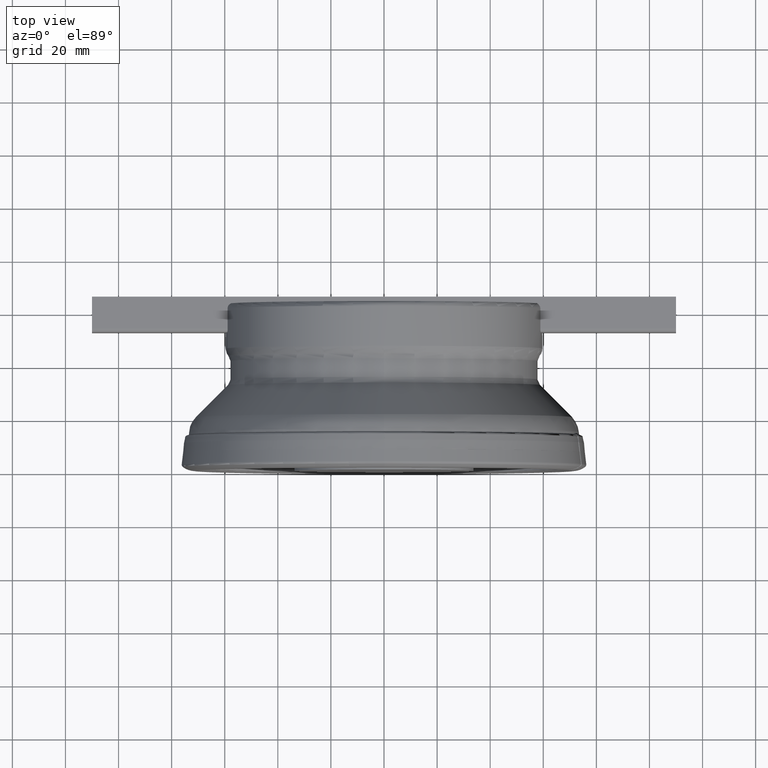
[diagram: clean part render]
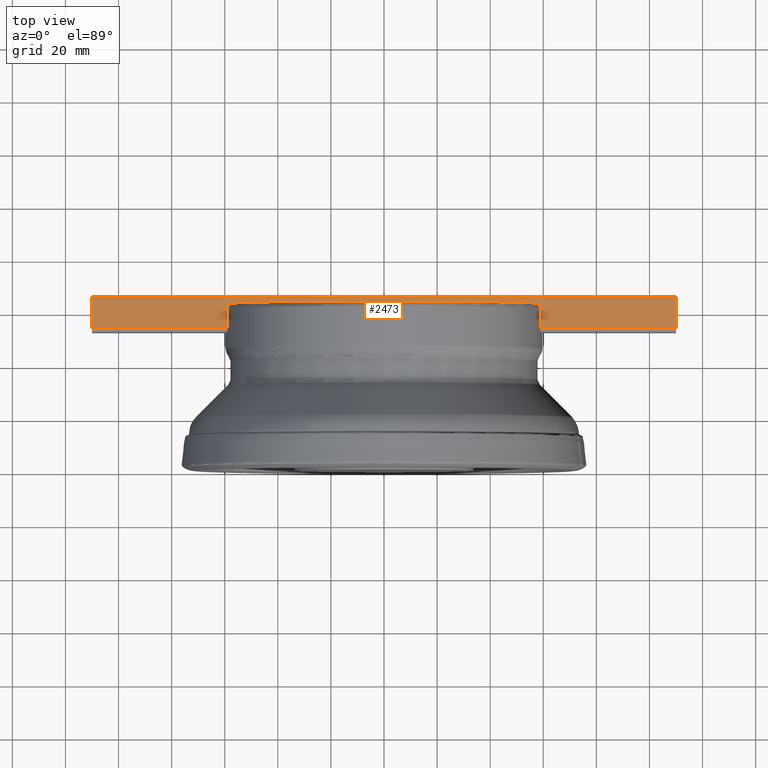
[diagram: same view with one face highlighted and labeled with its STEP entity id]
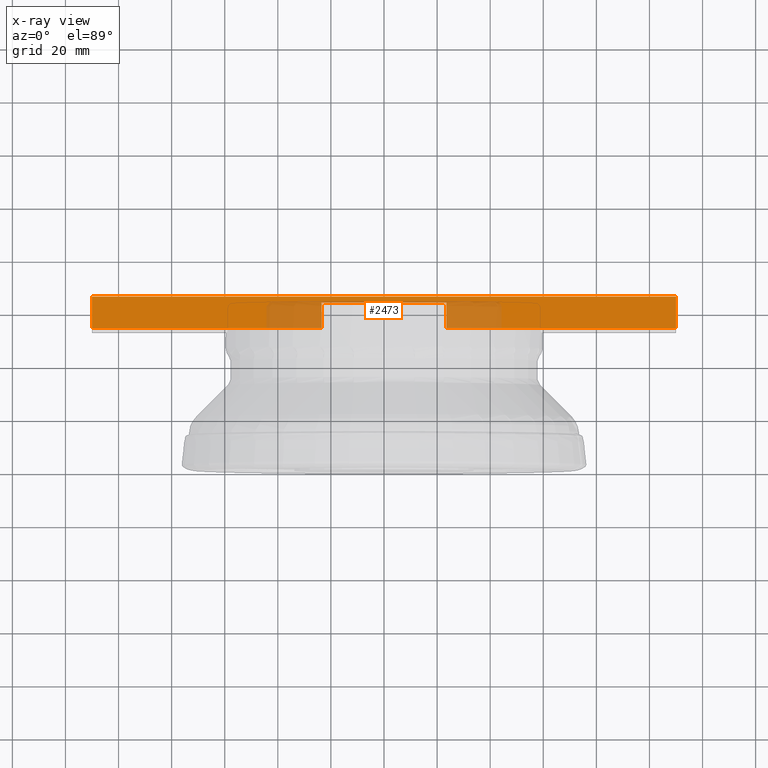
[diagram: x-ray of the same camera — body ghosted, the highlighted face saturated]
A machine part, top view. The second image highlights one B-rep face of the part: STEP entity #2473.
The next image is the same camera in x-ray: the body ghosted, the highlighted face saturated — about 20% of this face is hidden behind the body in this view.
In plain terms, the highlighted planar face has unit normal (-0, 0, -1).
Its self-contained STEP definition (entity closure, byte-faithful):
#601=PLANE('',#7863);
#1021=FACE_OUTER_BOUND('',#3255,.T.);
#1690=B_SPLINE_CURVE_WITH_KNOTS('',3,(#19332,#19333,#19334,#19335,#19336,
#19337,#19338),.UNSPECIFIED.,.F.,.F.,(4,3,4),(0.,0.532192285172933,1.),
 .UNSPECIFIED.);
#1691=B_SPLINE_CURVE_WITH_KNOTS('',3,(#19339,#19340,#19341,#19342,#19343,
#19344,#19345),.UNSPECIFIED.,.F.,.F.,(4,3,4),(0.,0.467807714827064,1.),
 .UNSPECIFIED.);
#1826=LINE('',#19222,#1983);
#1827=LINE('',#19229,#1984);
#1830=LINE('',#19315,#1987);
#1834=LINE('',#19383,#1991);
#1843=LINE('',#19405,#2000);
#1844=LINE('',#19407,#2001);
#1845=LINE('',#19409,#2002);
#1846=LINE('',#19411,#2003);
#1983=VECTOR('',#8972,1.);
#1984=VECTOR('',#8979,1.);
#1987=VECTOR('',#8988,1.);
#1991=VECTOR('',#9038,1.);
#2000=VECTOR('',#9059,1.);
#2001=VECTOR('',#9060,1.);
#2002=VECTOR('',#9061,1.);
#2003=VECTOR('',#9062,1.);
#2473=ADVANCED_FACE('',(#1021),#601,.F.);
#3255=EDGE_LOOP('',(#5323,#5324,#5325,#5326,#5327,#5328,#5329,#5330,#5331,
#5332));
#5323=ORIENTED_EDGE('',*,*,#7031,.F.);
#5324=ORIENTED_EDGE('',*,*,#7044,.F.);
#5325=ORIENTED_EDGE('',*,*,#7028,.F.);
#5326=ORIENTED_EDGE('',*,*,#7045,.F.);
#5327=ORIENTED_EDGE('',*,*,#7041,.F.);
#5328=ORIENTED_EDGE('',*,*,#7071,.T.);
#5329=ORIENTED_EDGE('',*,*,#7072,.T.);
#5330=ORIENTED_EDGE('',*,*,#7073,.F.);
#5331=ORIENTED_EDGE('',*,*,#7074,.F.);
#5332=ORIENTED_EDGE('',*,*,#7060,.T.);
#5993=VERTEX_POINT('',#19220);
#5994=VERTEX_POINT('',#19221);
#5996=VERTEX_POINT('',#19227);
#5997=VERTEX_POINT('',#19228);
#5998=VERTEX_POINT('',#19230);
#6007=VERTEX_POINT('',#19314);
#6021=VERTEX_POINT('',#19384);
#6028=VERTEX_POINT('',#19406);
#6029=VERTEX_POINT('',#19408);
#6030=VERTEX_POINT('',#19410);
#7028=EDGE_CURVE('',#5993,#5994,#1826,.T.);
#7031=EDGE_CURVE('',#5997,#5998,#1827,.T.);
#7041=EDGE_CURVE('',#6007,#5996,#1830,.T.);
#7044=EDGE_CURVE('',#5994,#5997,#1690,.T.);
#7045=EDGE_CURVE('',#5996,#5993,#1691,.T.);
#7060=EDGE_CURVE('',#6021,#5998,#1834,.T.);
#7071=EDGE_CURVE('',#6007,#6028,#1843,.T.);
#7072=EDGE_CURVE('',#6028,#6029,#1844,.T.);
#7073=EDGE_CURVE('',#6030,#6029,#1845,.T.);
#7074=EDGE_CURVE('',#6021,#6030,#1846,.T.);
#7863=AXIS2_PLACEMENT_3D('',#19412,#9063,#9064);
#8972=DIRECTION('',(0.,-1.,0.));
#8979=DIRECTION('',(-1.,0.,0.));
#8988=DIRECTION('',(1.,0.,0.));
#9038=DIRECTION('',(0.,1.,0.));
#9059=DIRECTION('',(0.,1.,0.));
#9060=DIRECTION('',(1.,0.,0.));
#9061=DIRECTION('',(0.,1.,0.));
#9062=DIRECTION('',(1.,0.,0.));
#9063=DIRECTION('',(0.,0.,1.));
#9064=DIRECTION('',(1.,0.,0.));
#19220=CARTESIAN_POINT('',(63.2,23.5778778837849,-9.725));
#19221=CARTESIAN_POINT('',(63.2,-23.5778778837849,-9.725));
#19222=CARTESIAN_POINT('',(63.2,-25.5047436862767,-9.725));
#19227=CARTESIAN_POINT('',(59.2,23.4645344083363,-9.725));
#19228=CARTESIAN_POINT('',(59.2,-23.4645344083363,-9.725));
#19229=CARTESIAN_POINT('',(0.,-23.4645344083363,-9.725));
#19230=CARTESIAN_POINT('',(53.6,-23.4645344083363,-9.725));
#19314=CARTESIAN_POINT('',(53.6,23.4645344083363,-9.725));
#19315=CARTESIAN_POINT('',(0.,23.4645344083363,-9.725));
#19332=CARTESIAN_POINT('',(63.2,-23.5778778837849,-9.725));
#19333=CARTESIAN_POINT('',(62.4904100866976,-23.5577780926018,-9.725));
#19334=CARTESIAN_POINT('',(61.7808202791497,-23.5376745675789,-9.725));
#19335=CARTESIAN_POINT('',(61.0712305782315,-23.5175672799212,-9.725));
#19336=CARTESIAN_POINT('',(60.4474869695782,-23.4998925699478,-9.725));
#19337=CARTESIAN_POINT('',(59.8237434433007,-23.4822149526708,-9.725));
#19338=CARTESIAN_POINT('',(59.2,-23.4645344083363,-9.725));
#19339=CARTESIAN_POINT('',(59.2,23.4645344083363,-9.725));
#19340=CARTESIAN_POINT('',(59.8237434433007,23.4822149526708,-9.725));
#19341=CARTESIAN_POINT('',(60.4474869695781,23.4998925699478,-9.725));
#19342=CARTESIAN_POINT('',(61.0712305782315,23.5175672799212,-9.725));
#19343=CARTESIAN_POINT('',(61.7808202791497,23.5376745675789,-9.725));
#19344=CARTESIAN_POINT('',(62.4904100866976,23.5577780926018,-9.725));
#19345=CARTESIAN_POINT('',(63.2,23.5778778837849,-9.725));
#19383=CARTESIAN_POINT('',(53.6,-110.,-9.725));
#19384=CARTESIAN_POINT('',(53.6,-110.,-9.725));
#19405=CARTESIAN_POINT('',(53.6,-110.,-9.725));
#19406=CARTESIAN_POINT('',(53.6,110.,-9.725));
#19407=CARTESIAN_POINT('',(52.,110.,-9.725));
#19408=CARTESIAN_POINT('',(65.5,110.,-9.725));
#19409=CARTESIAN_POINT('',(65.5,-110.,-9.725));
#19410=CARTESIAN_POINT('',(65.5,-110.,-9.725));
#19411=CARTESIAN_POINT('',(52.,-110.,-9.725));
#19412=CARTESIAN_POINT('',(52.,-110.,-9.725));